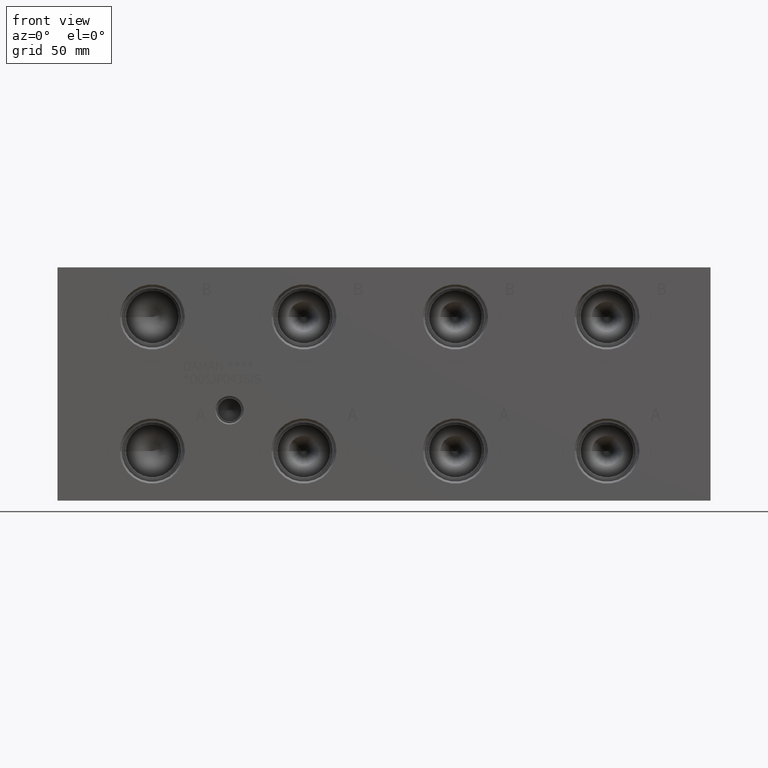
[diagram: clean part render]
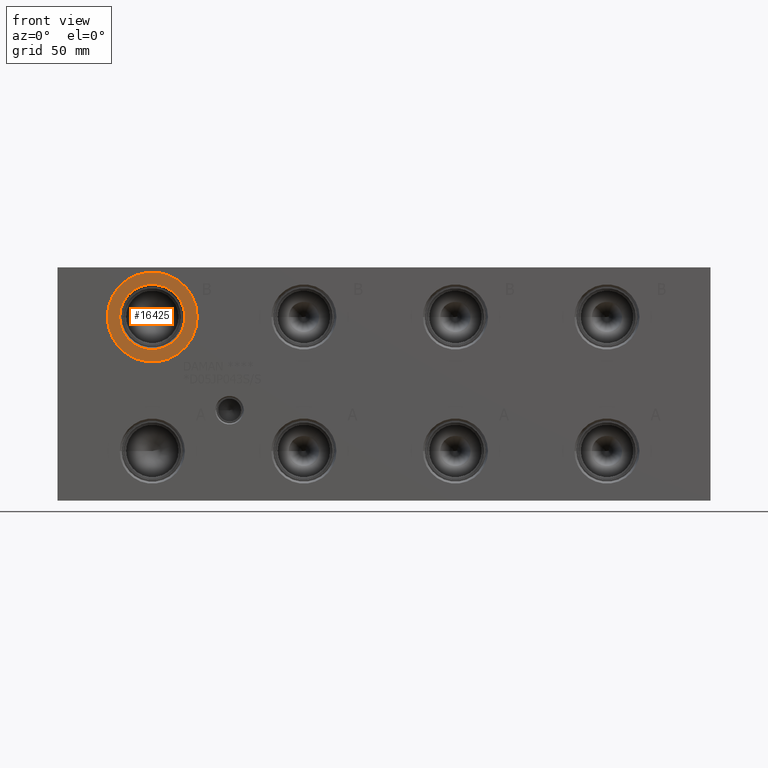
[diagram: same view with one face highlighted and labeled with its STEP entity id]
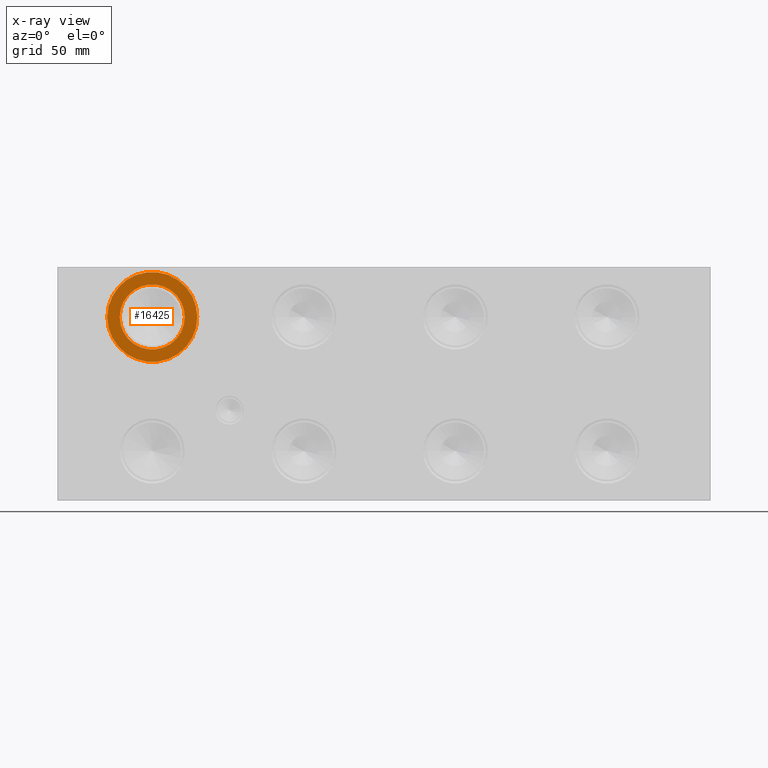
[diagram: x-ray of the same camera — body ghosted, the highlighted face saturated]
A machine part, front view. The second image highlights one B-rep face of the part: STEP entity #16425.
The next image is the same camera in x-ray: the body ghosted, the highlighted face saturated — about 0% of this face is hidden behind the body in this view.
In plain terms, the highlighted planar face has unit normal (0, 1, 0).
Its self-contained STEP definition (entity closure, byte-faithful):
#875=CIRCLE('',#17540,24.4856);
#876=CIRCLE('',#17541,24.4856);
#877=CIRCLE('',#17543,17.7546);
#878=CIRCLE('',#17544,17.7546);
#1439=FACE_BOUND('',#3269,.T.);
#2293=FACE_OUTER_BOUND('',#3268,.T.);
#3268=EDGE_LOOP('',(#14288,#14289));
#3269=EDGE_LOOP('',(#14290,#14291));
#7694=VERTEX_POINT('',#28372);
#7695=VERTEX_POINT('',#28374);
#7696=VERTEX_POINT('',#28378);
#7697=VERTEX_POINT('',#28379);
#9942=EDGE_CURVE('',#7694,#7695,#875,.T.);
#9943=EDGE_CURVE('',#7695,#7694,#876,.T.);
#9944=EDGE_CURVE('',#7696,#7697,#877,.T.);
#9945=EDGE_CURVE('',#7697,#7696,#878,.T.);
#14288=ORIENTED_EDGE('',*,*,#9943,.F.);
#14289=ORIENTED_EDGE('',*,*,#9942,.F.);
#14290=ORIENTED_EDGE('',*,*,#9944,.T.);
#14291=ORIENTED_EDGE('',*,*,#9945,.T.);
#15060=PLANE('',#17542);
#16425=ADVANCED_FACE('',(#2293,#1439),#15060,.F.);
#17540=AXIS2_PLACEMENT_3D('',#28375,#21126,#21127);
#17541=AXIS2_PLACEMENT_3D('',#28376,#21128,#21129);
#17542=AXIS2_PLACEMENT_3D('',#28377,#21130,#21131);
#17543=AXIS2_PLACEMENT_3D('',#28380,#21132,#21133);
#17544=AXIS2_PLACEMENT_3D('',#28381,#21134,#21135);
#21126=DIRECTION('center_axis',(0.,1.,0.));
#21127=DIRECTION('ref_axis',(1.,0.,0.));
#21128=DIRECTION('center_axis',(0.,1.,0.));
#21129=DIRECTION('ref_axis',(1.,0.,0.));
#21130=DIRECTION('center_axis',(0.,1.,0.));
#21131=DIRECTION('ref_axis',(0.,0.,1.));
#21132=DIRECTION('center_axis',(0.,1.,0.));
#21133=DIRECTION('ref_axis',(1.,0.,0.));
#21134=DIRECTION('center_axis',(0.,1.,0.));
#21135=DIRECTION('ref_axis',(1.,0.,0.));
#28372=CARTESIAN_POINT('',(27.1018,0.7874,99.9998));
#28374=CARTESIAN_POINT('',(76.073,0.7874,99.9998));
#28375=CARTESIAN_POINT('Origin',(51.5874,0.7874,99.9998));
#28376=CARTESIAN_POINT('Origin',(51.5874,0.7874,99.9998));
#28377=CARTESIAN_POINT('Origin',(69.342,0.7874,99.9998));
#28378=CARTESIAN_POINT('',(69.342,0.7874,99.9998));
#28379=CARTESIAN_POINT('',(33.8328,0.787399999999998,99.9998));
#28380=CARTESIAN_POINT('Origin',(51.5874,0.7874,99.9998));
#28381=CARTESIAN_POINT('Origin',(51.5874,0.7874,99.9998));